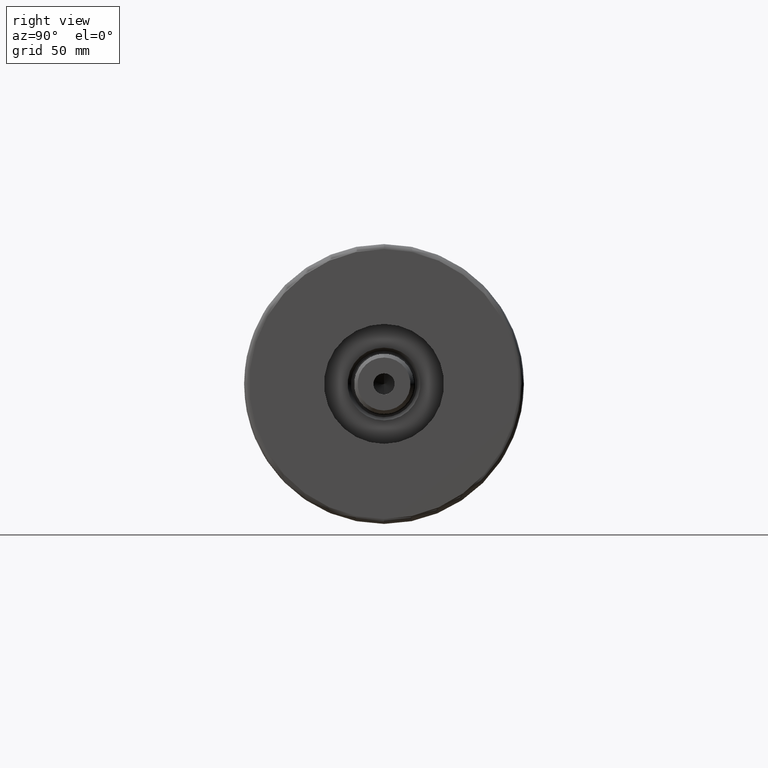
[diagram: clean part render]
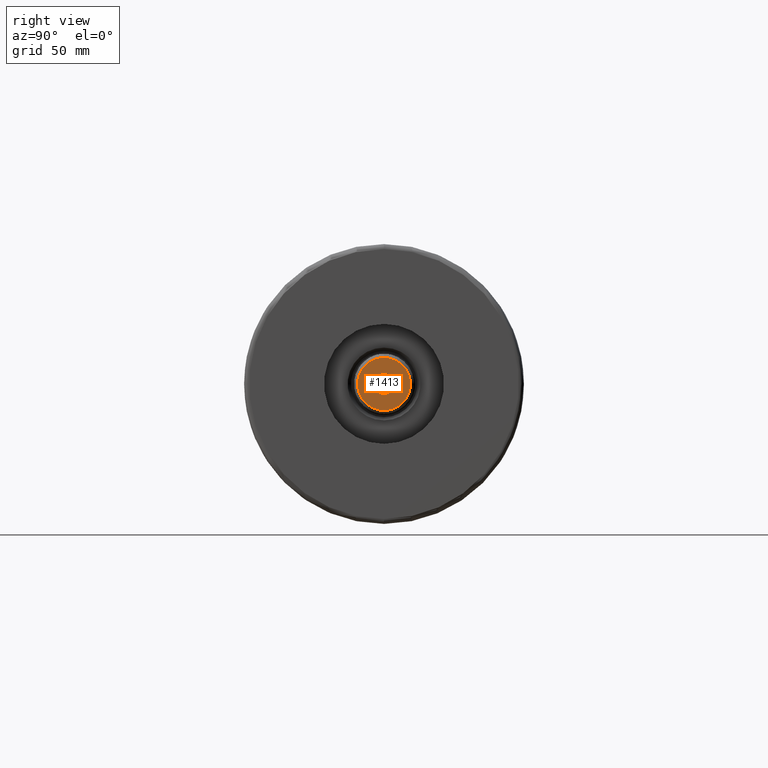
[diagram: same view with one face highlighted and labeled with its STEP entity id]
A machine part, right view. The second image highlights one B-rep face of the part: STEP entity #1413.
In plain terms, the highlighted planar face has unit normal (1, 0, -0).
Its self-contained STEP definition (entity closure, byte-faithful):
#315 = DIRECTION ( 'NONE',  ( -0.000000000000000000, -0.000000000000000000, 1.000000000000000000 ) ) ;
#351 = DIRECTION ( 'NONE',  ( 0.000000000000000000, 0.000000000000000000, 1.000000000000000000 ) ) ;
#516 = CIRCLE ( 'NONE', #2172, 4.249999999999997335 ) ;
#714 = EDGE_LOOP ( 'NONE', ( #1783, #4821 ) ) ;
#798 = CARTESIAN_POINT ( 'NONE',  ( -4.249999999999997335, 5.204748896376248727E-16, 207.7000000000000171 ) ) ;
#984 = CIRCLE ( 'NONE', #4802, 4.249999999999997335 ) ;
#993 = CIRCLE ( 'NONE', #4753, 10.59999999999997122 ) ;
#1038 = FACE_OUTER_BOUND ( 'NONE', #714, .T. ) ;
#1058 = DIRECTION ( 'NONE',  ( 1.000000000000000000, 0.000000000000000000, 0.000000000000000000 ) ) ;
#1398 = AXIS2_PLACEMENT_3D ( 'NONE', #2246, #2642, #2593 ) ;
#1413 = ADVANCED_FACE ( 'NONE', ( #1038, #3708 ), #4067, .T. ) ;
#1418 = EDGE_CURVE ( 'NONE', #4475, #1777, #984, .T. ) ;
#1510 = DIRECTION ( 'NONE',  ( 1.000000000000000000, 0.000000000000000000, 0.000000000000000000 ) ) ;
#1579 = VERTEX_POINT ( 'NONE', #4705 ) ;
#1673 = CARTESIAN_POINT ( 'NONE',  ( 10.59999999999997122, 1.383850883036507292E-15, 207.7000000000000171 ) ) ;
#1681 = VERTEX_POINT ( 'NONE', #1673 ) ;
#1777 = VERTEX_POINT ( 'NONE', #798 ) ;
#1783 = ORIENTED_EDGE ( 'NONE', *, *, #4467, .T. ) ;
#2172 = AXIS2_PLACEMENT_3D ( 'NONE', #2195, #2605, #1058 ) ;
#2175 = CARTESIAN_POINT ( 'NONE',  ( 0.000000000000000000, 0.000000000000000000, 207.7000000000000171 ) ) ;
#2195 = CARTESIAN_POINT ( 'NONE',  ( 0.000000000000000000, 0.000000000000000000, 207.7000000000000171 ) ) ;
#2246 = CARTESIAN_POINT ( 'NONE',  ( 0.000000000000000000, 0.000000000000000000, 207.7000000000000171 ) ) ;
#2260 = CARTESIAN_POINT ( 'NONE',  ( 0.000000000000000000, 0.000000000000000000, 207.7000000000000171 ) ) ;
#2406 = ORIENTED_EDGE ( 'NONE', *, *, #3649, .F. ) ;
#2445 = ORIENTED_EDGE ( 'NONE', *, *, #1418, .F. ) ;
#2483 = AXIS2_PLACEMENT_3D ( 'NONE', #2260, #351, #2959 ) ;
#2593 = DIRECTION ( 'NONE',  ( 1.000000000000000000, 0.000000000000000000, 0.000000000000000000 ) ) ;
#2605 = DIRECTION ( 'NONE',  ( -0.000000000000000000, -0.000000000000000000, 1.000000000000000000 ) ) ;
#2642 = DIRECTION ( 'NONE',  ( 0.000000000000000000, 0.000000000000000000, 1.000000000000000000 ) ) ;
#2810 = EDGE_LOOP ( 'NONE', ( #2445, #2406 ) ) ;
#2959 = DIRECTION ( 'NONE',  ( 1.000000000000000000, 0.000000000000000000, -0.000000000000000000 ) ) ;
#3353 = CARTESIAN_POINT ( 'NONE',  ( 4.249999999999997335, 0.000000000000000000, 207.7000000000000171 ) ) ;
#3499 = CIRCLE ( 'NONE', #1398, 10.59999999999997122 ) ;
#3649 = EDGE_CURVE ( 'NONE', #1777, #4475, #516, .T. ) ;
#3708 = FACE_BOUND ( 'NONE', #2810, .T. ) ;
#3715 = DIRECTION ( 'NONE',  ( 1.000000000000000000, 0.000000000000000000, 0.000000000000000000 ) ) ;
#4067 = PLANE ( 'NONE',  #2483 ) ;
#4467 = EDGE_CURVE ( 'NONE', #1579, #1681, #3499, .T. ) ;
#4475 = VERTEX_POINT ( 'NONE', #3353 ) ;
#4480 = EDGE_CURVE ( 'NONE', #1681, #1579, #993, .T. ) ;
#4499 = DIRECTION ( 'NONE',  ( 0.000000000000000000, 0.000000000000000000, 1.000000000000000000 ) ) ;
#4705 = CARTESIAN_POINT ( 'NONE',  ( -10.59999999999997122, 0.000000000000000000, 207.7000000000000171 ) ) ;
#4753 = AXIS2_PLACEMENT_3D ( 'NONE', #4832, #4499, #3715 ) ;
#4802 = AXIS2_PLACEMENT_3D ( 'NONE', #2175, #315, #1510 ) ;
#4821 = ORIENTED_EDGE ( 'NONE', *, *, #4480, .T. ) ;
#4832 = CARTESIAN_POINT ( 'NONE',  ( 0.000000000000000000, 0.000000000000000000, 207.7000000000000171 ) ) ;